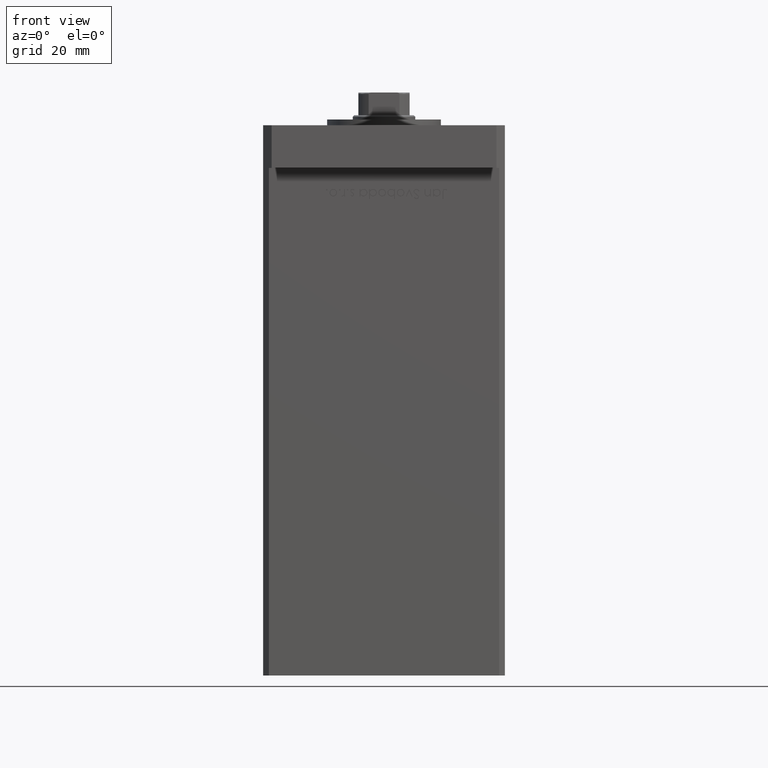
[diagram: clean part render]
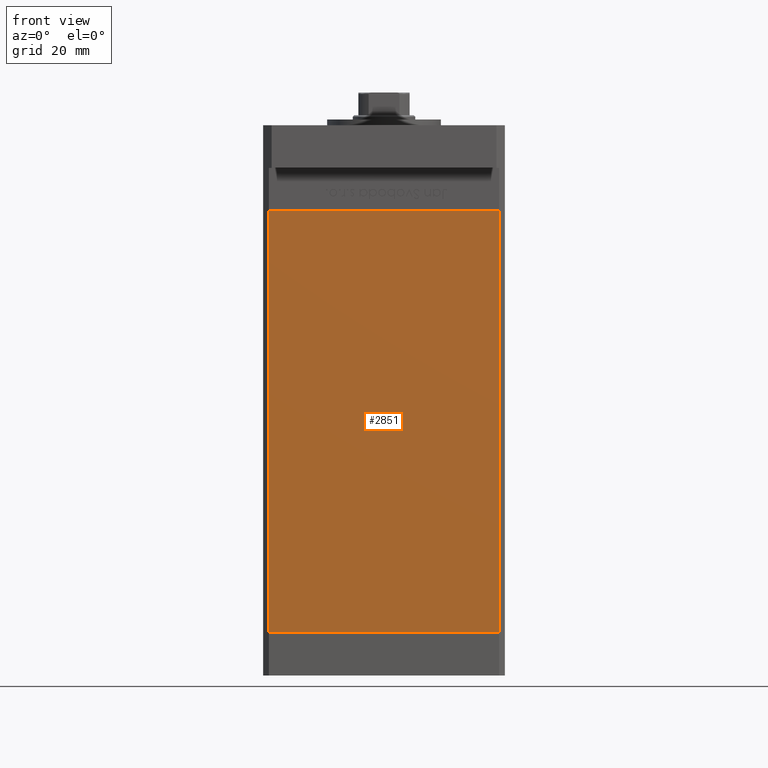
[diagram: same view with one face highlighted and labeled with its STEP entity id]
A machine part, front view. The second image highlights one B-rep face of the part: STEP entity #2851.
In plain terms, the highlighted planar face has unit normal (0, 1, 0).
Its self-contained STEP definition (entity closure, byte-faithful):
#223 = FACE_OUTER_BOUND ( 'NONE', #46924, .T. ) ;
#1269 = CARTESIAN_POINT ( 'NONE',  ( -40.49999999999998579, -37.50000000000000711, 148.5000000000000000 ) ) ;
#2512 = CARTESIAN_POINT ( 'NONE',  ( -40.49999999999998579, -37.50000000000000711, 148.5000000000000000 ) ) ;
#2851 = ADVANCED_FACE ( 'NONE', ( #223 ), #32741, .F. ) ;
#3379 = CARTESIAN_POINT ( 'NONE',  ( -40.49999999999998579, -37.50000000000000711, 148.5000000000000000 ) ) ;
#4948 = DIRECTION ( 'NONE',  ( 1.000000000000000000, 0.000000000000000000, 0.000000000000000000 ) ) ;
#5647 = VECTOR ( 'NONE', #42713, 1000.000000000000000 ) ;
#6505 = EDGE_CURVE ( 'NONE', #26552, #46445, #25533, .T. ) ;
#9392 = LINE ( 'NONE', #1269, #5647 ) ;
#10193 = LINE ( 'NONE', #48648, #43248 ) ;
#10755 = ORIENTED_EDGE ( 'NONE', *, *, #26549, .T. ) ;
#13625 = CARTESIAN_POINT ( 'NONE',  ( -40.49999999999998579, -37.50000000000000711, 0.000000000000000000 ) ) ;
#15638 = ORIENTED_EDGE ( 'NONE', *, *, #15900, .F. ) ;
#15900 = EDGE_CURVE ( 'NONE', #24441, #20957, #9392, .T. ) ;
#16751 = CARTESIAN_POINT ( 'NONE',  ( -40.49999999999998579, -37.50000000000000711, 148.5000000000000000 ) ) ;
#18942 = VECTOR ( 'NONE', #39697, 1000.000000000000000 ) ;
#20249 = CARTESIAN_POINT ( 'NONE',  ( 40.49999999999998579, -37.50000000000000711, 0.000000000000000000 ) ) ;
#20957 = VERTEX_POINT ( 'NONE', #46025 ) ;
#23154 = LINE ( 'NONE', #3379, #18942 ) ;
#23669 = VECTOR ( 'NONE', #4948, 1000.000000000000000 ) ;
#23709 = DIRECTION ( 'NONE',  ( -0.000000000000000000, -0.000000000000000000, -1.000000000000000000 ) ) ;
#24441 = VERTEX_POINT ( 'NONE', #2512 ) ;
#25533 = LINE ( 'NONE', #13625, #23669 ) ;
#26549 = EDGE_CURVE ( 'NONE', #24441, #26552, #23154, .T. ) ;
#26552 = VERTEX_POINT ( 'NONE', #40768 ) ;
#30489 = AXIS2_PLACEMENT_3D ( 'NONE', #16751, #33283, #49813 ) ;
#32741 = PLANE ( 'NONE',  #30489 ) ;
#33283 = DIRECTION ( 'NONE',  ( 0.000000000000000000, 1.000000000000000000, 0.000000000000000000 ) ) ;
#38546 = EDGE_CURVE ( 'NONE', #20957, #46445, #10193, .T. ) ;
#39697 = DIRECTION ( 'NONE',  ( -0.000000000000000000, -0.000000000000000000, -1.000000000000000000 ) ) ;
#40768 = CARTESIAN_POINT ( 'NONE',  ( -40.49999999999998579, -37.50000000000000711, 0.000000000000000000 ) ) ;
#40930 = ORIENTED_EDGE ( 'NONE', *, *, #6505, .T. ) ;
#42713 = DIRECTION ( 'NONE',  ( 1.000000000000000000, 0.000000000000000000, 0.000000000000000000 ) ) ;
#43248 = VECTOR ( 'NONE', #23709, 1000.000000000000000 ) ;
#44631 = ORIENTED_EDGE ( 'NONE', *, *, #38546, .F. ) ;
#46025 = CARTESIAN_POINT ( 'NONE',  ( 40.49999999999998579, -37.50000000000000711, 148.5000000000000000 ) ) ;
#46445 = VERTEX_POINT ( 'NONE', #20249 ) ;
#46924 = EDGE_LOOP ( 'NONE', ( #40930, #44631, #15638, #10755 ) ) ;
#48648 = CARTESIAN_POINT ( 'NONE',  ( 40.49999999999998579, -37.50000000000000711, 148.5000000000000000 ) ) ;
#49813 = DIRECTION ( 'NONE',  ( 0.000000000000000000, -0.000000000000000000, 1.000000000000000000 ) ) ;